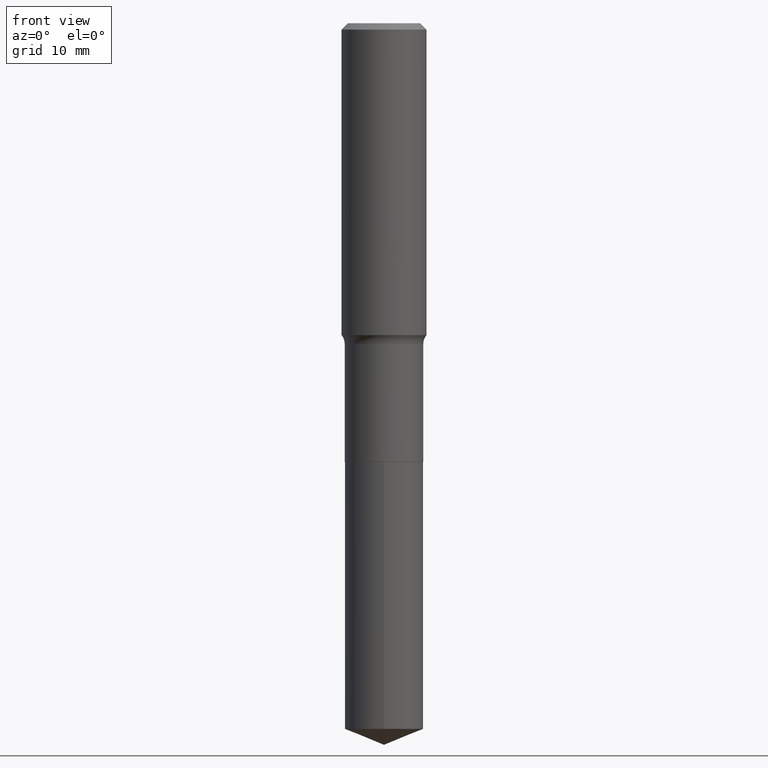
[diagram: clean part render]
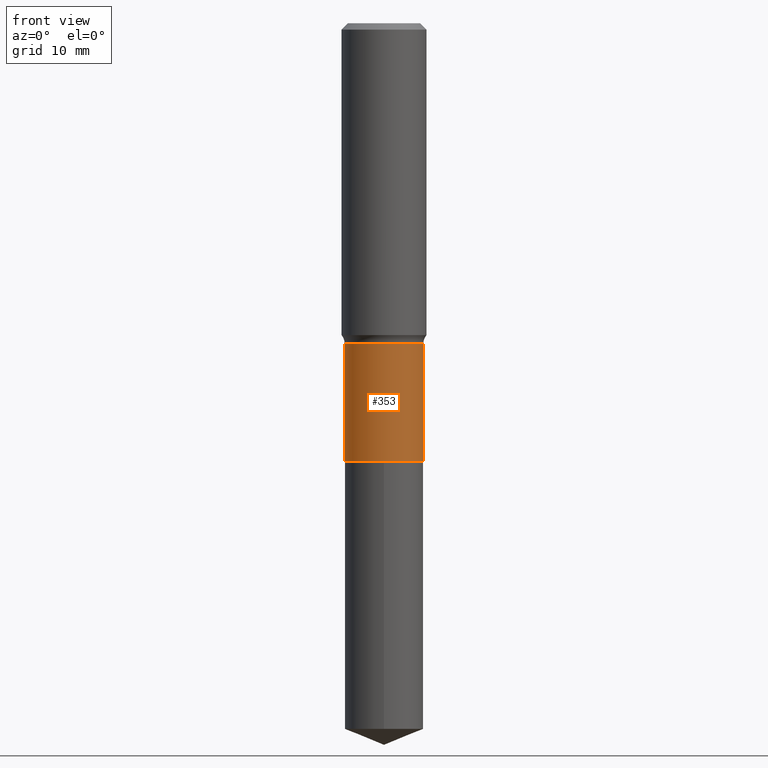
[diagram: same view with one face highlighted and labeled with its STEP entity id]
A machine part, front view. The second image highlights one B-rep face of the part: STEP entity #353.
In plain terms, the highlighted cylindrical surface (partial cylindrical patch) has radius 5.5562 mm, axis along (-0, 0, 1).
Its self-contained STEP definition (entity closure, byte-faithful):
#1 = DIRECTION ( 'NONE',  ( -2.445468806185136597E-29, 3.491481338843145583E-15, 1.000000000000000000 ) ) ;
#5 = VECTOR ( 'NONE', #50, 39.37007874015748143 ) ;
#7 = LINE ( 'NONE', #163, #383 ) ;
#9 = CARTESIAN_POINT ( 'NONE',  ( 5.967922074614207358E-29, -8.520611059312812251E-15, -2.440399999999999903 ) ) ;
#23 = VERTEX_POINT ( 'NONE', #420 ) ;
#39 = DIRECTION ( 'NONE',  ( 1.000000000000000000, -6.982962677686266711E-15, 4.876176775795935232E-29 ) ) ;
#50 = DIRECTION ( 'NONE',  ( -2.445468806185136877E-29, 3.491481338843145188E-15, 1.000000000000000000 ) ) ;
#57 = EDGE_CURVE ( 'NONE', #59, #23, #352, .T. ) ;
#59 = VERTEX_POINT ( 'NONE', #342 ) ;
#72 = CARTESIAN_POINT ( 'NONE',  ( 0.000000000000000000, 0.000000000000000000, 0.000000000000000000 ) ) ;
#73 = ORIENTED_EDGE ( 'NONE', *, *, #474, .F. ) ;
#77 = FACE_OUTER_BOUND ( 'NONE', #105, .T. ) ;
#105 = EDGE_LOOP ( 'NONE', ( #73, #113, #291, #341 ) ) ;
#113 = ORIENTED_EDGE ( 'NONE', *, *, #139, .T. ) ;
#127 = DIRECTION ( 'NONE',  ( -2.445468806185136597E-29, 3.491481338843145583E-15, 1.000000000000000000 ) ) ;
#133 = LINE ( 'NONE', #162, #5 ) ;
#139 = EDGE_CURVE ( 'NONE', #404, #475, #140, .T. ) ;
#140 = CIRCLE ( 'NONE', #381, 0.2187500000000000000 ) ;
#145 = EDGE_CURVE ( 'NONE', #475, #23, #133, .T. ) ;
#162 = CARTESIAN_POINT ( 'NONE',  ( 0.2187499999999999445, -1.527523085743870449E-15, 1.066663669705360604E-29 ) ) ;
#163 = CARTESIAN_POINT ( 'NONE',  ( -0.2187499999999999445, 1.554312234475218762E-15, -1.076017050993260482E-29 ) ) ;
#191 = CARTESIAN_POINT ( 'NONE',  ( 0.2187500000000000000, -1.004813414505668230E-14, -2.440399999999999903 ) ) ;
#224 = DIRECTION ( 'NONE',  ( -2.445468806185136597E-29, 3.491481338843145583E-15, 1.000000000000000000 ) ) ;
#237 = AXIS2_PLACEMENT_3D ( 'NONE', #272, #1, #411 ) ;
#244 = AXIS2_PLACEMENT_3D ( 'NONE', #72, #224, #39 ) ;
#257 = CYLINDRICAL_SURFACE ( 'NONE', #244, 0.2187499999999999445 ) ;
#272 = CARTESIAN_POINT ( 'NONE',  ( 4.364428178398614221E-29, -6.231246745433362541E-15, -1.784700000000000175 ) ) ;
#277 = DIRECTION ( 'NONE',  ( 1.000000000000000000, -6.982962677686262766E-15, 0.000000000000000000 ) ) ;
#291 = ORIENTED_EDGE ( 'NONE', *, *, #145, .T. ) ;
#299 = CARTESIAN_POINT ( 'NONE',  ( -0.2187500000000000000, -5.821616667897867845E-15, -2.440399999999999903 ) ) ;
#311 = DIRECTION ( 'NONE',  ( -2.445468806185136877E-29, 3.491481338843145188E-15, 1.000000000000000000 ) ) ;
#341 = ORIENTED_EDGE ( 'NONE', *, *, #57, .F. ) ;
#342 = CARTESIAN_POINT ( 'NONE',  ( -0.2187499999999999167, -5.821616667897867845E-15, -1.784700000000000175 ) ) ;
#352 = CIRCLE ( 'NONE', #237, 0.2187499999999999167 ) ;
#353 = ADVANCED_FACE ( 'NONE', ( #77 ), #257, .T. ) ;
#381 = AXIS2_PLACEMENT_3D ( 'NONE', #9, #127, #277 ) ;
#383 = VECTOR ( 'NONE', #311, 39.37007874015748143 ) ;
#404 = VERTEX_POINT ( 'NONE', #299 ) ;
#411 = DIRECTION ( 'NONE',  ( 1.000000000000000000, -6.982962677686265922E-15, 0.000000000000000000 ) ) ;
#420 = CARTESIAN_POINT ( 'NONE',  ( 0.2187499999999999167, -7.758769831177233384E-15, -1.784700000000000175 ) ) ;
#474 = EDGE_CURVE ( 'NONE', #404, #59, #7, .T. ) ;
#475 = VERTEX_POINT ( 'NONE', #191 ) ;